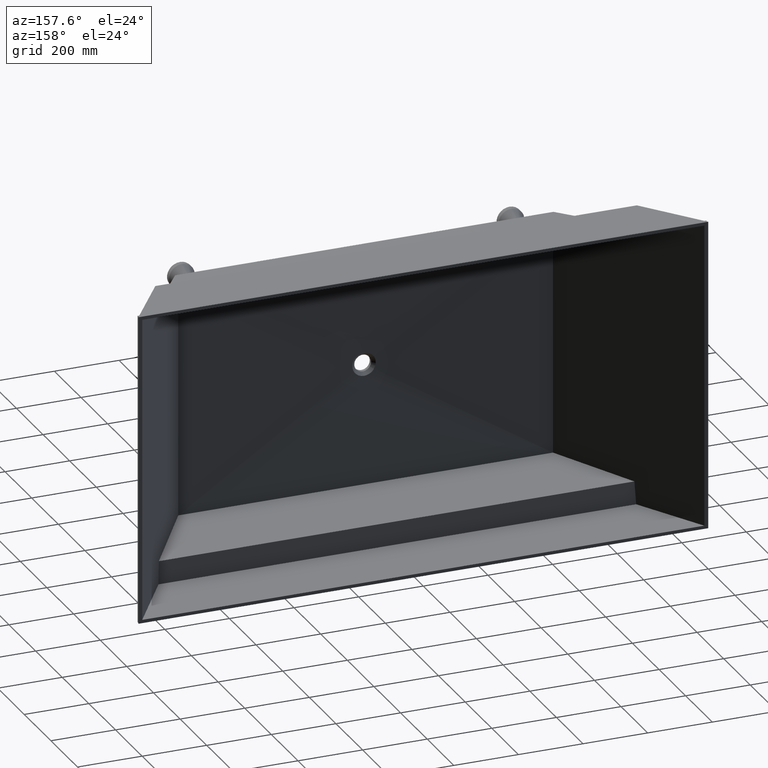
[diagram: clean part render]
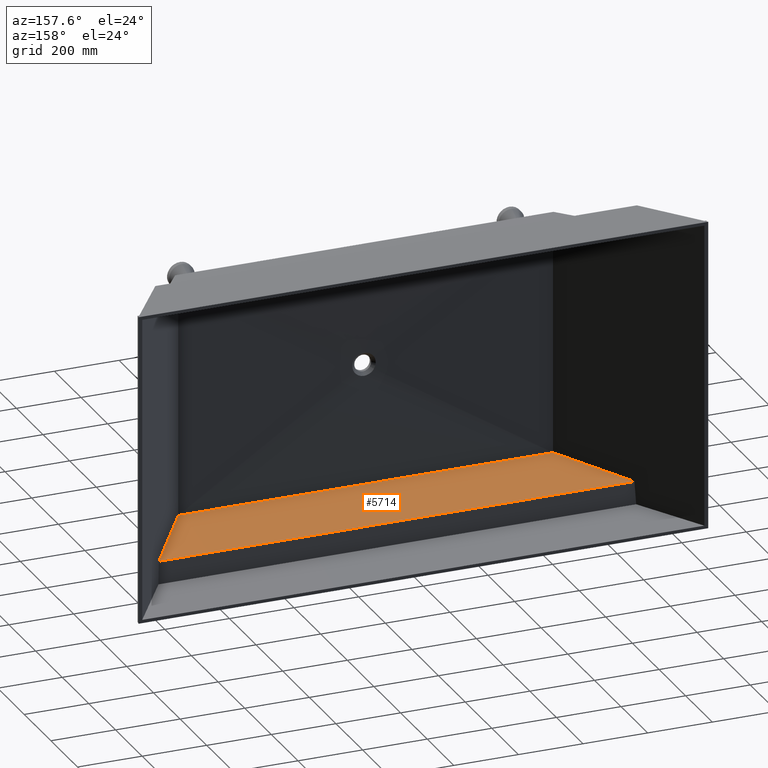
[diagram: same view with one face highlighted and labeled with its STEP entity id]
A machine part, auxiliary view. The second image highlights one B-rep face of the part: STEP entity #5714.
In plain terms, the highlighted planar face has unit normal (0, -0.0897, -0.996).
Its self-contained STEP definition (entity closure, byte-faithful):
#286 = AXIS2_PLACEMENT_3D ( 'NONE', #1555, #1079, #1048 ) ;
#326 = EDGE_CURVE ( 'NONE', #7959, #4900, #3562, .T. ) ;
#658 = EDGE_CURVE ( 'NONE', #7283, #7959, #2321, .T. ) ;
#1048 = DIRECTION ( 'NONE',  ( 0.0000000000000000000, 0.9959656295343049000, -0.08973552689061276000 ) ) ;
#1079 = DIRECTION ( 'NONE',  ( 0.0000000000000000000, -0.08973552689061276000, -0.9959656295343049000 ) ) ;
#1110 = PLANE ( 'NONE',  #286 ) ;
#1200 = VECTOR ( 'NONE', #7734, 1000.000000000000000 ) ;
#1219 = ORIENTED_EDGE ( 'NONE', *, *, #658, .F. ) ;
#1555 = CARTESIAN_POINT ( 'NONE',  ( 870.0010999999998400, -199.9999999999999100, -390.9930715935336100 ) ) ;
#1672 = VECTOR ( 'NONE', #6278, 1000.000000000000200 ) ;
#1742 = ORIENTED_EDGE ( 'NONE', *, *, #7508, .T. ) ;
#1821 = ORIENTED_EDGE ( 'NONE', *, *, #2879, .T. ) ;
#2123 = CARTESIAN_POINT ( 'NONE',  ( -736.0508083140877000, -199.9999999999999100, -390.9930715935336100 ) ) ;
#2227 = VERTEX_POINT ( 'NONE', #2123 ) ;
#2321 = LINE ( 'NONE', #8784, #1672 ) ;
#2582 = CARTESIAN_POINT ( 'NONE',  ( 580.0000000000001100, -433.0000000000000000, -369.9999999999997200 ) ) ;
#2879 = EDGE_CURVE ( 'NONE', #2227, #4900, #5085, .T. ) ;
#3001 = VECTOR ( 'NONE', #4375, 1000.000000000000000 ) ;
#3562 = LINE ( 'NONE', #4401, #3001 ) ;
#3589 = FACE_OUTER_BOUND ( 'NONE', #7166, .T. ) ;
#4375 = DIRECTION ( 'NONE',  ( -1.000000000000000000, 0.0000000000000000000, 0.0000000000000000000 ) ) ;
#4401 = CARTESIAN_POINT ( 'NONE',  ( 870.0010999999998400, -432.9999999999996000, -369.9999999999997200 ) ) ;
#4900 = VERTEX_POINT ( 'NONE', #8995 ) ;
#5085 = LINE ( 'NONE', #7944, #6724 ) ;
#5714 = ADVANCED_FACE ( 'NONE', ( #3589 ), #1110, .F. ) ;
#6278 = DIRECTION ( 'NONE',  ( -0.5549174707474422400, -0.8285491890815255300, 0.07465146972168654200 ) ) ;
#6724 = VECTOR ( 'NONE', #7966, 1000.000000000000100 ) ;
#6832 = CARTESIAN_POINT ( 'NONE',  ( 736.0508083140875900, -199.9999999999999100, -390.9930715935336100 ) ) ;
#7166 = EDGE_LOOP ( 'NONE', ( #1219, #1742, #1821, #8660 ) ) ;
#7283 = VERTEX_POINT ( 'NONE', #6832 ) ;
#7508 = EDGE_CURVE ( 'NONE', #7283, #2227, #8372, .T. ) ;
#7734 = DIRECTION ( 'NONE',  ( -1.000000000000000000, 0.0000000000000000000, 0.0000000000000000000 ) ) ;
#7765 = CARTESIAN_POINT ( 'NONE',  ( 870.0010999999998400, -199.9999999999999100, -390.9930715935336100 ) ) ;
#7944 = CARTESIAN_POINT ( 'NONE',  ( -777.2985769756142000, -138.4128143777898000, -396.5420166450843500 ) ) ;
#7959 = VERTEX_POINT ( 'NONE', #2582 ) ;
#7966 = DIRECTION ( 'NONE',  ( 0.5549174707474424700, -0.8285491890815254200, 0.07465146972168652800 ) ) ;
#8372 = LINE ( 'NONE', #7765, #1200 ) ;
#8660 = ORIENTED_EDGE ( 'NONE', *, *, #326, .F. ) ;
#8784 = CARTESIAN_POINT ( 'NONE',  ( 777.2985769756139700, -138.4128143777898000, -396.5420166450843500 ) ) ;
#8995 = CARTESIAN_POINT ( 'NONE',  ( -580.0000000000001100, -433.0000000000000000, -369.9999999999996600 ) ) ;